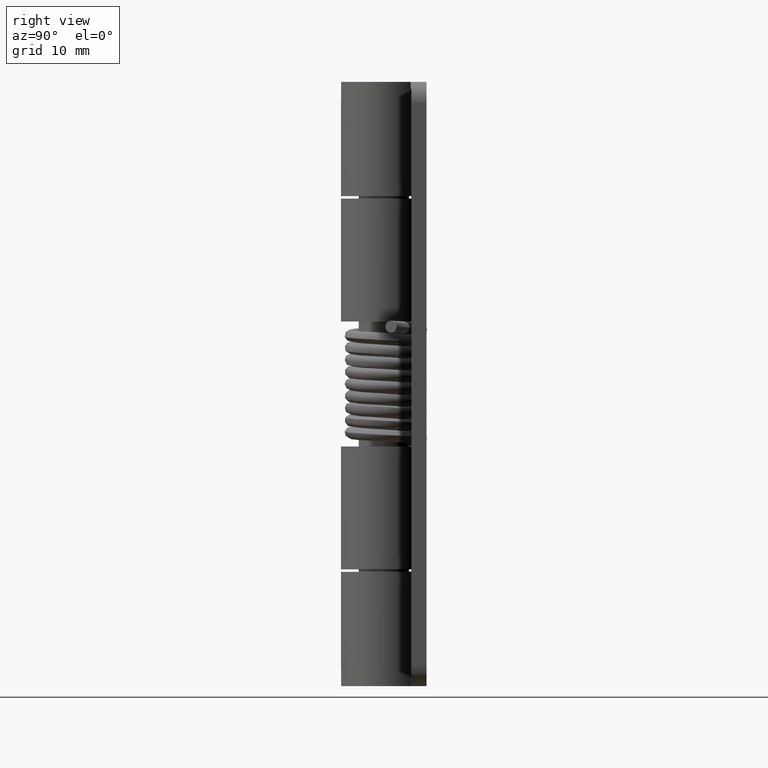
[diagram: clean part render]
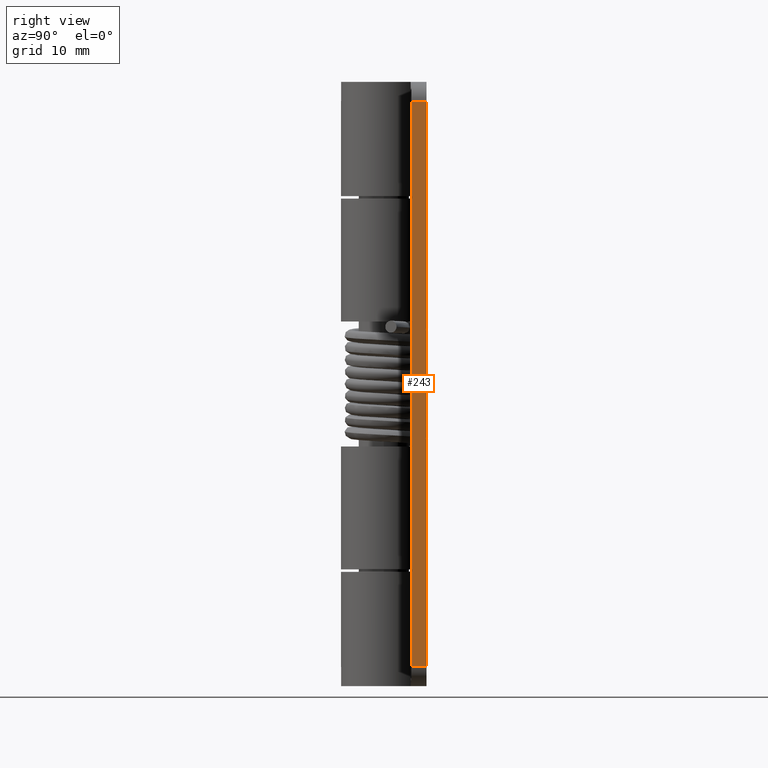
[diagram: same view with one face highlighted and labeled with its STEP entity id]
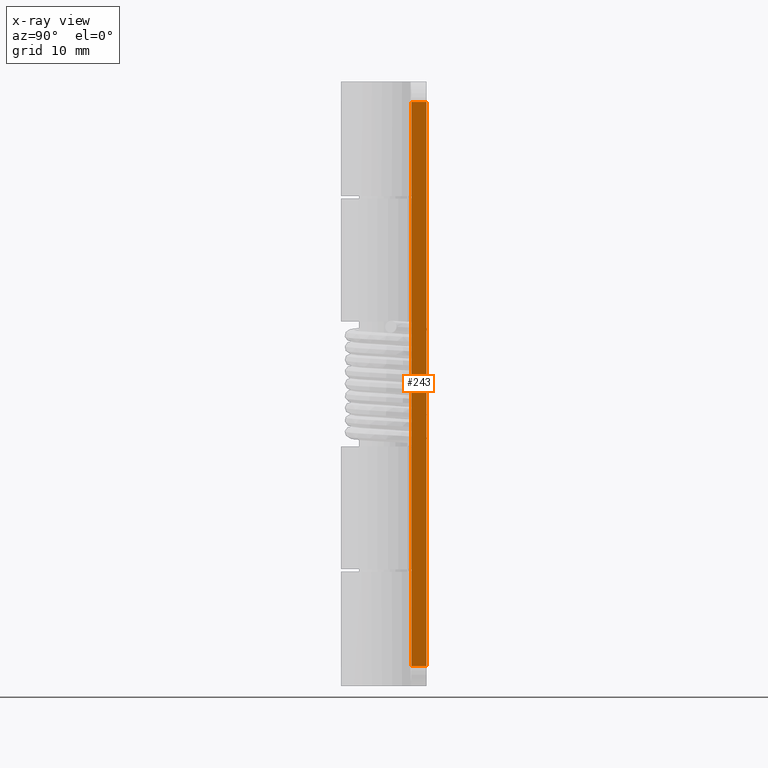
[diagram: x-ray of the same camera — body ghosted, the highlighted face saturated]
A machine part, right view. The second image highlights one B-rep face of the part: STEP entity #243.
The next image is the same camera in x-ray: the body ghosted, the highlighted face saturated — about 0% of this face is hidden behind the body in this view.
In plain terms, the highlighted planar face has unit normal (-1, 0, 0).
Its self-contained STEP definition (entity closure, byte-faithful):
#243=ADVANCED_FACE('',(#857),#856,.F.);
#856=PLANE('',#1477);
#857=FACE_OUTER_BOUND('',#1478,.T.);
#1474=CARTESIAN_POINT('',(2.00000000000E+01,2.60000000000E+00,-3.60000000000E+00));
#1475=DIRECTION('',(-1.00000000000E+00,0.00000000000E+00,0.00000000000E+00));
#1476=DIRECTION('',(0.00000000000E+00,0.00000000000E+00,1.00000000000E+00));
#1477=AXIS2_PLACEMENT_3D('',#1474,#1475,#1476);
#1478=EDGE_LOOP('',(#6085,#6086,#6087,#6088));
#6085=ORIENTED_EDGE('',*,*,#6334,.T.);
#6086=ORIENTED_EDGE('',*,*,#6411,.T.);
#6087=ORIENTED_EDGE('',*,*,#6401,.F.);
#6088=ORIENTED_EDGE('',*,*,#6412,.T.);
#6334=EDGE_CURVE('',#7262,#7255,#7263,.T.);
#6401=EDGE_CURVE('',#7704,#7711,#7712,.T.);
#6411=EDGE_CURVE('',#7255,#7711,#7779,.T.);
#6412=EDGE_CURVE('',#7704,#7262,#7785,.T.);
#7255=VERTEX_POINT('',#8474);
#7262=VERTEX_POINT('',#8479);
#7263=LINE('',#8480,#8481);
#7704=VERTEX_POINT('',#8823);
#7711=VERTEX_POINT('',#8828);
#7712=LINE('',#8829,#8830);
#7779=LINE('',#8873,#8874);
#7785=LINE('',#8876,#8877);
#8474=CARTESIAN_POINT('',(2.00000000000E+01,2.75000000000E+00,2.00000000000E+00));
#8479=CARTESIAN_POINT('',(2.00000000000E+01,2.75000000000E+00,5.80000000000E+01));
#8480=CARTESIAN_POINT('',(2.00000000000E+01,2.75000000000E+00,5.80000000000E+01));
#8481=VECTOR('',#8482,5.60000000000E+01);
#8482=DIRECTION('',(0.00000000000E+00,0.00000000000E+00,-1.00000000000E+00));
#8823=CARTESIAN_POINT('',(2.00000000000E+01,4.25000000000E+00,5.80000000000E+01));
#8828=CARTESIAN_POINT('',(2.00000000000E+01,4.25000000000E+00,2.00000000000E+00));
#8829=CARTESIAN_POINT('',(2.00000000000E+01,4.25000000000E+00,5.80000000000E+01));
#8830=VECTOR('',#8831,5.60000000000E+01);
#8831=DIRECTION('',(0.00000000000E+00,0.00000000000E+00,-1.00000000000E+00));
#8873=CARTESIAN_POINT('',(2.00000000000E+01,2.75000000000E+00,2.00000000000E+00));
#8874=VECTOR('',#8875,1.50000000000E+00);
#8875=DIRECTION('',(0.00000000000E+00,1.00000000000E+00,0.00000000000E+00));
#8876=CARTESIAN_POINT('',(2.00000000000E+01,4.25000000000E+00,5.80000000000E+01));
#8877=VECTOR('',#8878,1.50000000000E+00);
#8878=DIRECTION('',(0.00000000000E+00,-1.00000000000E+00,0.00000000000E+00));